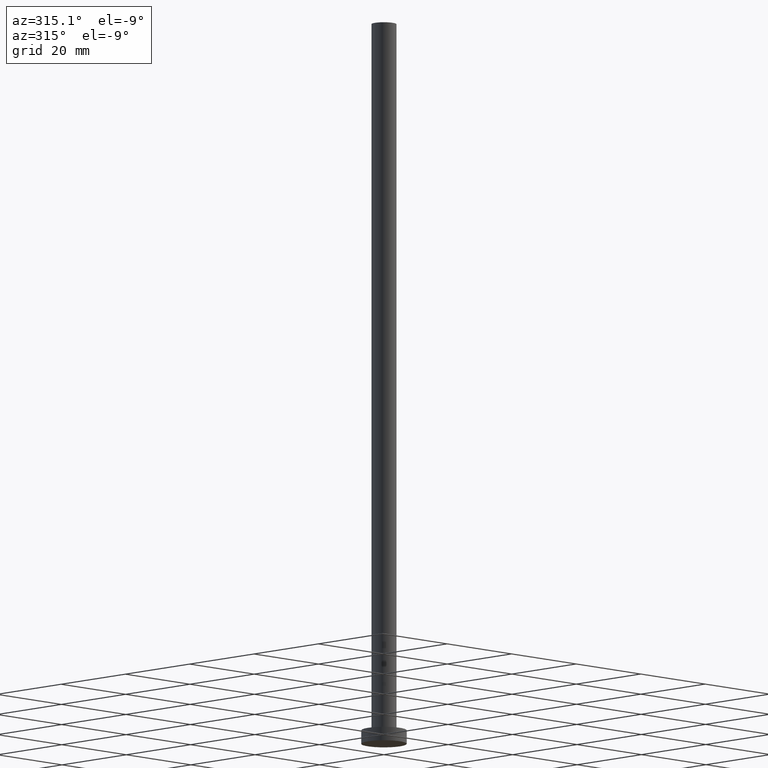
[diagram: clean part render]
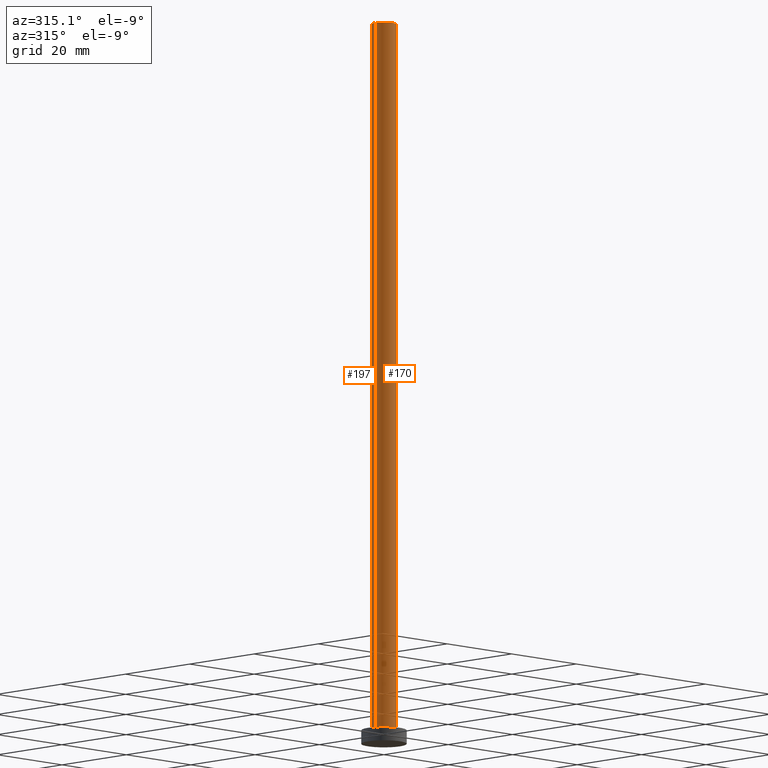
[diagram: same view with one multi-face feature highlighted, each face labeled with its STEP entity id]
A machine part, auxiliary view. The highlighted faces form ONE feature: a constant-radius fillet chain: 2 tangent blend faces with common blend radius 2.75 mm. The faces share edges in the B-rep.
Their STEP definitions:
[1] entity #197 (Cylinder):
#12 = VECTOR ( 'NONE', #108, 1000.000000000000000 ) ;
#24 = FACE_OUTER_BOUND ( 'NONE', #27, .T. ) ;
#27 = EDGE_LOOP ( 'NONE', ( #198, #122, #99, #203 ) ) ;
#47 = LINE ( 'NONE', #206, #12 ) ;
#49 = CIRCLE ( 'NONE', #195, 2.750000000000000000 ) ;
#59 = EDGE_CURVE ( 'NONE', #193, #169, #175, .T. ) ;
#66 = DIRECTION ( 'NONE',  ( 1.000000000000000000, 0.000000000000000000, 0.000000000000000000 ) ) ;
#68 = DIRECTION ( 'NONE',  ( 1.000000000000000000, 0.000000000000000000, 0.000000000000000000 ) ) ;
#83 = CARTESIAN_POINT ( 'NONE',  ( 0.000000000000000000, 0.000000000000000000, 160.0000000000000000 ) ) ;
#89 = CIRCLE ( 'NONE', #200, 2.750000000000000000 ) ;
#99 = ORIENTED_EDGE ( 'NONE', *, *, #246, .T. ) ;
#100 = CARTESIAN_POINT ( 'NONE',  ( 0.000000000000000000, 0.000000000000000000, 3.000000000000000000 ) ) ;
#103 = DIRECTION ( 'NONE',  ( -1.000000000000000000, 0.000000000000000000, 0.000000000000000000 ) ) ;
#107 = CYLINDRICAL_SURFACE ( 'NONE', #148, 2.750000000000000000 ) ;
#108 = DIRECTION ( 'NONE',  ( -0.000000000000000000, -0.000000000000000000, -1.000000000000000000 ) ) ;
#109 = VECTOR ( 'NONE', #144, 1000.000000000000000 ) ;
#121 = DIRECTION ( 'NONE',  ( 0.000000000000000000, 0.000000000000000000, 1.000000000000000000 ) ) ;
#122 = ORIENTED_EDGE ( 'NONE', *, *, #123, .T. ) ;
#123 = EDGE_CURVE ( 'NONE', #132, #153, #47, .T. ) ;
#124 = CARTESIAN_POINT ( 'NONE',  ( 2.750000000000000000, 3.367778697655221012E-16, 3.000000000000000000 ) ) ;
#132 = VERTEX_POINT ( 'NONE', #242 ) ;
#144 = DIRECTION ( 'NONE',  ( -0.000000000000000000, -0.000000000000000000, -1.000000000000000000 ) ) ;
#146 = EDGE_CURVE ( 'NONE', #132, #193, #49, .T. ) ;
#147 = CARTESIAN_POINT ( 'NONE',  ( 0.000000000000000000, 0.000000000000000000, 160.0000000000000000 ) ) ;
#148 = AXIS2_PLACEMENT_3D ( 'NONE', #83, #199, #103 ) ;
#149 = DIRECTION ( 'NONE',  ( 0.000000000000000000, 0.000000000000000000, 1.000000000000000000 ) ) ;
#153 = VERTEX_POINT ( 'NONE', #124 ) ;
#162 = CARTESIAN_POINT ( 'NONE',  ( -2.750000000000000000, 0.000000000000000000, 160.0000000000000000 ) ) ;
#169 = VERTEX_POINT ( 'NONE', #182 ) ;
#175 = LINE ( 'NONE', #162, #109 ) ;
#182 = CARTESIAN_POINT ( 'NONE',  ( -2.750000000000000000, 0.000000000000000000, 3.000000000000000000 ) ) ;
#193 = VERTEX_POINT ( 'NONE', #205 ) ;
#195 = AXIS2_PLACEMENT_3D ( 'NONE', #147, #149, #68 ) ;
#197 = ADVANCED_FACE ( 'NONE', ( #24 ), #107, .T. ) ;
#198 = ORIENTED_EDGE ( 'NONE', *, *, #146, .F. ) ;
#199 = DIRECTION ( 'NONE',  ( -0.000000000000000000, -0.000000000000000000, -1.000000000000000000 ) ) ;
#200 = AXIS2_PLACEMENT_3D ( 'NONE', #100, #121, #66 ) ;
#203 = ORIENTED_EDGE ( 'NONE', *, *, #59, .F. ) ;
#205 = CARTESIAN_POINT ( 'NONE',  ( -2.750000000000000000, 0.000000000000000000, 160.0000000000000000 ) ) ;
#206 = CARTESIAN_POINT ( 'NONE',  ( 2.750000000000000000, 3.367778697655221012E-16, 160.0000000000000000 ) ) ;
#242 = CARTESIAN_POINT ( 'NONE',  ( 2.750000000000000000, 3.367778697655221012E-16, 160.0000000000000000 ) ) ;
#246 = EDGE_CURVE ( 'NONE', #153, #169, #89, .T. ) ;
[2] entity #170 (Cylinder):
#4 = FACE_OUTER_BOUND ( 'NONE', #211, .T. ) ;
#6 = CYLINDRICAL_SURFACE ( 'NONE', #243, 2.750000000000000000 ) ;
#12 = VECTOR ( 'NONE', #108, 1000.000000000000000 ) ;
#19 = DIRECTION ( 'NONE',  ( 1.000000000000000000, 0.000000000000000000, 0.000000000000000000 ) ) ;
#25 = CARTESIAN_POINT ( 'NONE',  ( 0.000000000000000000, 0.000000000000000000, 160.0000000000000000 ) ) ;
#47 = LINE ( 'NONE', #206, #12 ) ;
#54 = EDGE_CURVE ( 'NONE', #169, #153, #184, .T. ) ;
#59 = EDGE_CURVE ( 'NONE', #193, #169, #175, .T. ) ;
#88 = CARTESIAN_POINT ( 'NONE',  ( 0.000000000000000000, 0.000000000000000000, 160.0000000000000000 ) ) ;
#108 = DIRECTION ( 'NONE',  ( -0.000000000000000000, -0.000000000000000000, -1.000000000000000000 ) ) ;
#109 = VECTOR ( 'NONE', #144, 1000.000000000000000 ) ;
#116 = EDGE_CURVE ( 'NONE', #193, #132, #236, .T. ) ;
#123 = EDGE_CURVE ( 'NONE', #132, #153, #47, .T. ) ;
#124 = CARTESIAN_POINT ( 'NONE',  ( 2.750000000000000000, 3.367778697655221012E-16, 3.000000000000000000 ) ) ;
#125 = DIRECTION ( 'NONE',  ( 1.000000000000000000, 0.000000000000000000, 0.000000000000000000 ) ) ;
#127 = AXIS2_PLACEMENT_3D ( 'NONE', #25, #226, #125 ) ;
#130 = ORIENTED_EDGE ( 'NONE', *, *, #123, .F. ) ;
#132 = VERTEX_POINT ( 'NONE', #242 ) ;
#144 = DIRECTION ( 'NONE',  ( -0.000000000000000000, -0.000000000000000000, -1.000000000000000000 ) ) ;
#153 = VERTEX_POINT ( 'NONE', #124 ) ;
#158 = DIRECTION ( 'NONE',  ( 0.000000000000000000, 0.000000000000000000, 1.000000000000000000 ) ) ;
#162 = CARTESIAN_POINT ( 'NONE',  ( -2.750000000000000000, 0.000000000000000000, 160.0000000000000000 ) ) ;
#164 = CARTESIAN_POINT ( 'NONE',  ( 0.000000000000000000, 0.000000000000000000, 3.000000000000000000 ) ) ;
#165 = DIRECTION ( 'NONE',  ( -0.000000000000000000, -0.000000000000000000, -1.000000000000000000 ) ) ;
#169 = VERTEX_POINT ( 'NONE', #182 ) ;
#170 = ADVANCED_FACE ( 'NONE', ( #4 ), #6, .T. ) ;
#175 = LINE ( 'NONE', #162, #109 ) ;
#182 = CARTESIAN_POINT ( 'NONE',  ( -2.750000000000000000, 0.000000000000000000, 3.000000000000000000 ) ) ;
#184 = CIRCLE ( 'NONE', #220, 2.750000000000000000 ) ;
#193 = VERTEX_POINT ( 'NONE', #205 ) ;
#205 = CARTESIAN_POINT ( 'NONE',  ( -2.750000000000000000, 0.000000000000000000, 160.0000000000000000 ) ) ;
#206 = CARTESIAN_POINT ( 'NONE',  ( 2.750000000000000000, 3.367778697655221012E-16, 160.0000000000000000 ) ) ;
#208 = ORIENTED_EDGE ( 'NONE', *, *, #54, .T. ) ;
#211 = EDGE_LOOP ( 'NONE', ( #130, #213, #231, #208 ) ) ;
#213 = ORIENTED_EDGE ( 'NONE', *, *, #116, .F. ) ;
#220 = AXIS2_PLACEMENT_3D ( 'NONE', #164, #158, #19 ) ;
#226 = DIRECTION ( 'NONE',  ( 0.000000000000000000, 0.000000000000000000, 1.000000000000000000 ) ) ;
#231 = ORIENTED_EDGE ( 'NONE', *, *, #59, .T. ) ;
#236 = CIRCLE ( 'NONE', #127, 2.750000000000000000 ) ;
#241 = DIRECTION ( 'NONE',  ( -1.000000000000000000, 0.000000000000000000, 0.000000000000000000 ) ) ;
#242 = CARTESIAN_POINT ( 'NONE',  ( 2.750000000000000000, 3.367778697655221012E-16, 160.0000000000000000 ) ) ;
#243 = AXIS2_PLACEMENT_3D ( 'NONE', #88, #165, #241 ) ;